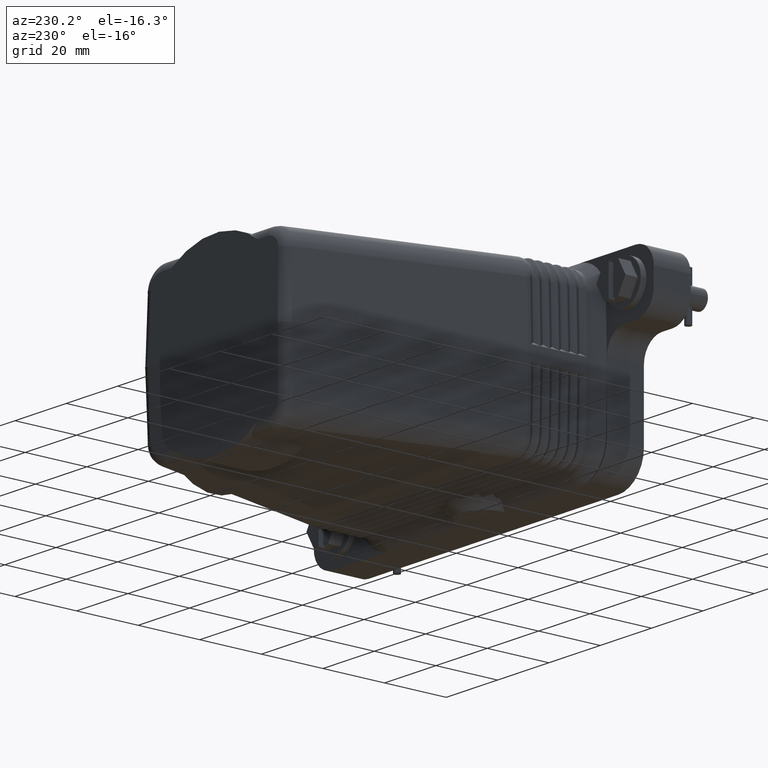
[diagram: clean part render]
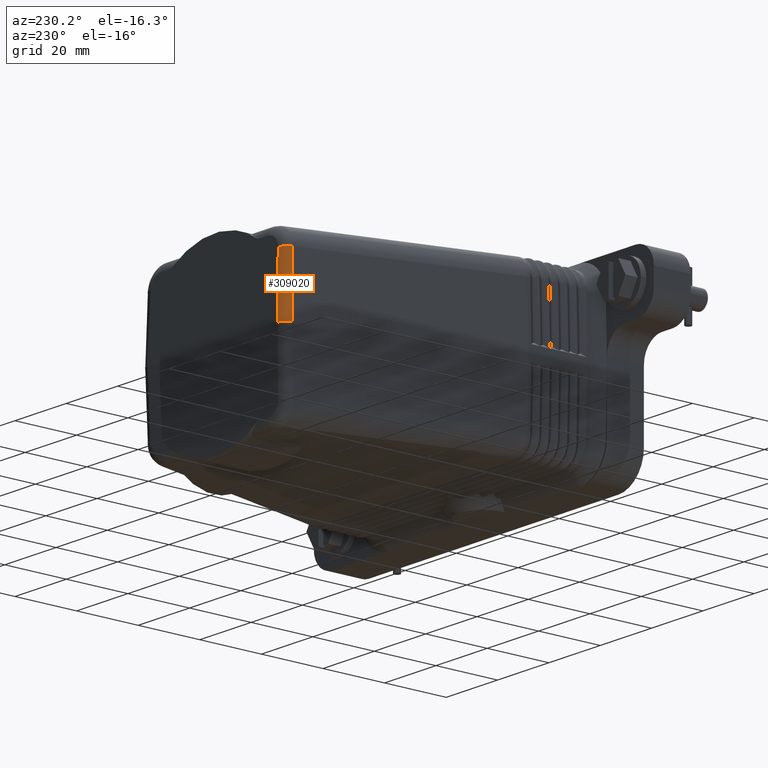
[diagram: same view with one face highlighted and labeled with its STEP entity id]
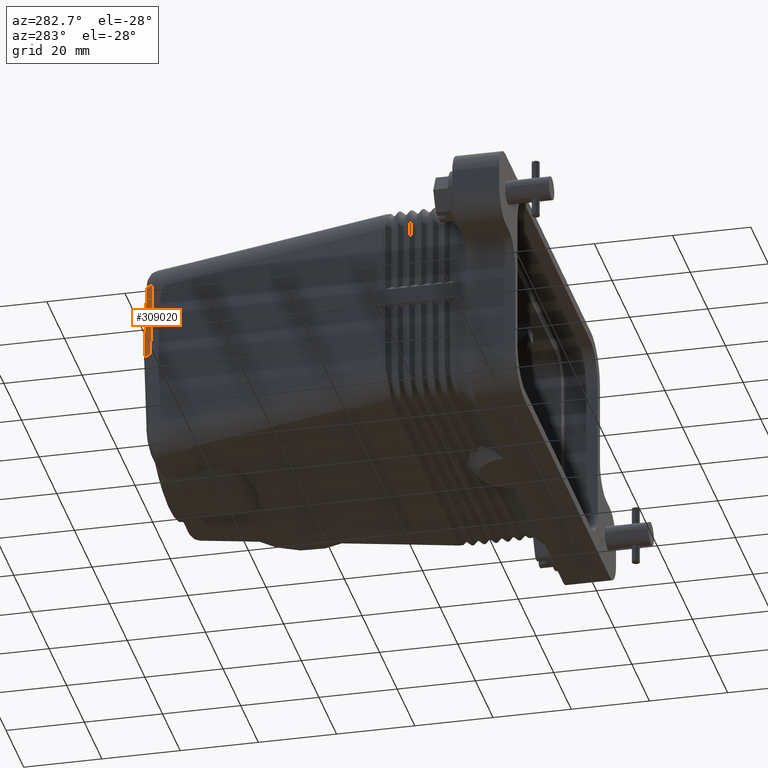
[diagram: same view with one face highlighted and labeled with its STEP entity id]
A machine part, auxiliary view. The second image highlights one B-rep face of the part: STEP entity #309020.
A second angle (auxiliary view) of the same face is appended — the face is thin or edge-on in the first view.
In plain terms, the highlighted face is a freeform B-spline surface patch.
Its self-contained STEP definition (entity closure, byte-faithful):
#13430=CARTESIAN_POINT('',(91.206011157678,94.0713620879131,
-26.0000000000001));
#13440=VERTEX_POINT('',#13430);
#13470=CARTESIAN_POINT('',(91.601509731377,93.5559384390967,
-6.31676136184489));
#13480=DIRECTION('',(-0.0200822294205101,0.0261716644575434,
-0.999455725903366));
#13490=VECTOR('',#13480,1.);
#13500=LINE('',#13470,#13490);
#13510=CARTESIAN_POINT('',(91.601509731377,93.5559384390967,
-6.31676136184489));
#13520=VERTEX_POINT('',#13510);
#13530=EDGE_CURVE('',#13520,#13440,#13500,.T.);
#194690=CARTESIAN_POINT('',(94.498294172408,95.7787191862643,
-6.31675866843525));
#194700=VERTEX_POINT('',#194690);
#194730=CARTESIAN_POINT('',(94.498294172408,95.7787191862643,
-6.31675866843525));
#194740=DIRECTION('',(-0.0200822245460291,0.0261716692496576,
-0.999455725875824));
#194750=VECTOR('',#194740,1.);
#194760=LINE('',#194730,#194750);
#194770=CARTESIAN_POINT('',(94.1027956405768,96.294143,-26.0000000000002
));
#194780=VERTEX_POINT('',#194770);
#194790=EDGE_CURVE('',#194700,#194780,#194760,.T.);
#250910=CARTESIAN_POINT('',(94.1027956405768,93.2951710250733,
-26.0000000000001));
#250920=DIRECTION('',(2.60731013591237E-14,2.00065943331677E-14,1.));
#250930=DIRECTION('',(1.,0.,-2.60731013591237E-14));
#250940=AXIS2_PLACEMENT_3D('',#250910,#250920,#250930);
#250950=CIRCLE('',#250940,2.99897197492669);
#250960=EDGE_CURVE('',#194780,#13440,#250950,.T.);
#308570=CARTESIAN_POINT('',(94.498294172408,95.7787191862643,
-6.31675866843525));
#308580=CARTESIAN_POINT('',(94.4958499351479,95.7819045782788,
-6.43840388172883));
#308590=CARTESIAN_POINT('',(94.4934057595329,95.7850899820879,
-6.56004954543669));
#308600=CARTESIAN_POINT('',(94.3640171203746,95.9537125395964,
-12.9994852194087));
#308610=CARTESIAN_POINT('',(94.2370727094547,96.1191497168476,
-19.3172761290824));
#308620=CARTESIAN_POINT('',(94.1076840792154,96.2877722627326,
-25.7567113591708));
#308630=CARTESIAN_POINT('',(94.1052398598961,96.2909576313663,
-25.8783556795855));
#308640=CARTESIAN_POINT('',(94.1027956405768,96.294143,-26.0000000000002
));
#308650=CARTESIAN_POINT('',(93.0871837024079,95.7779772623066,
-6.28842573557759));
#308660=CARTESIAN_POINT('',(93.0847394749059,95.7811626416039,
-6.41007046321517));
#308670=CARTESIAN_POINT('',(93.0822952644129,95.7843480235453,
-6.53171529183043));
#308680=CARTESIAN_POINT('',(92.9529066251059,95.9529705812477,
-12.9711509732094));
#308690=CARTESIAN_POINT('',(92.8259622141858,96.1184077584989,
-19.2889418828831));
#308700=CARTESIAN_POINT('',(92.6965689699672,96.2870260989121,
-25.7282165124822));
#308710=CARTESIAN_POINT('',(92.6937831963871,96.290682993239,
-25.8678676726419));
#308720=CARTESIAN_POINT('',(92.6912258799093,96.294143,-26.0000000000002
));
#308730=CARTESIAN_POINT('',(91.9674486920052,94.9187743930386,
-6.28842580437775));
#308740=CARTESIAN_POINT('',(91.9650044630301,94.9219597742563,
-6.41007060534332));
#308750=CARTESIAN_POINT('',(91.9625602241359,94.9251451083714,
-6.53171530664447));
#308760=CARTESIAN_POINT('',(91.8331715851264,95.0937676656858,
-12.9711509732094));
#308770=CARTESIAN_POINT('',(91.7062271742065,95.2592048429371,
-19.2889418828831));
#308780=CARTESIAN_POINT('',(91.5768438003269,95.4278307571278,
-25.7282165124822));
#308790=CARTESIAN_POINT('',(91.5740325229102,95.4314680816726,
-25.8678676726419));
#308800=CARTESIAN_POINT('',(91.5713522952296,95.4348337753505,
-26.0000000000001));
#308810=CARTESIAN_POINT('',(91.601509731377,93.5559384390967,
-6.31676136184489));
#308820=CARTESIAN_POINT('',(91.5990655121603,93.5591238075968,
-6.43840567715446));
#308830=CARTESIAN_POINT('',(91.5966212766341,93.562309070001,
-6.56004954543669));
#308840=CARTESIAN_POINT('',(91.4672326374758,93.7309316275094,
-12.9994852194087));
#308850=CARTESIAN_POINT('',(91.3402882265559,93.8963688047607,
-19.3172761290824));
#308860=CARTESIAN_POINT('',(91.2108995963166,94.0649913506456,
-25.7567113591708));
#308870=CARTESIAN_POINT('',(91.2084553769973,94.0681767192794,
-25.8783556795854));
#308880=CARTESIAN_POINT('',(91.206011157678,94.0713620879131,
-26.0000000000001));
#308890=(BOUNDED_SURFACE() B_SPLINE_SURFACE(3,3,((#308570,#308650,
#308730,#308810),(#308580,#308660,#308740,#308820),(#308590,#308670,
#308750,#308830),(#308600,#308680,#308760,#308840),(#308610,#308690,
#308770,#308850),(#308620,#308700,#308780,#308860),(#308630,#308710,
#308790,#308870),(#308640,#308720,#308800,#308880)),.UNSPECIFIED.,.F.,
.F.,.F.) B_SPLINE_SURFACE_WITH_KNOTS((4,2,2,4),(4,4),(0.,
0.365133025378699,19.3288272038063,19.693958896809),(0.,1.),
.UNSPECIFIED.) GEOMETRIC_REPRESENTATION_ITEM() RATIONAL_B_SPLINE_SURFACE
(((1.,0.862342244510653,0.862342244510653,1.),(1.,0.862342244510583,
0.862342244510583,1.),(1.,0.862342244510559,0.862342244510559,1.),(1.,
0.862342244510566,0.862342244510566,1.),(1.,0.862342244510565,
0.862342244510565,1.),(1.,0.86234984823323,0.86234984823323,1.),(1.,
0.862330197985938,0.862330197985938,1.),(1.,0.862235560194157,
0.862235560194157,1.))) REPRESENTATION_ITEM('') SURFACE());
#308900=CARTESIAN_POINT('',(94.4982941407009,92.7797473331406,
-6.39529085797577));
#308910=DIRECTION('',(0.0200817135389942,-0.0261720641106264,
0.999455725803563));
#308920=DIRECTION('',(0.,0.999657314640633,0.0261773429797464));
#308930=AXIS2_PLACEMENT_3D('',#308900,#308910,#308920);
#308940=CIRCLE('',#308930,2.99999991343697);
#308950=EDGE_CURVE('',#194700,#13520,#308940,.T.);
#308960=ORIENTED_EDGE('',*,*,#308950,.F.);
#308970=ORIENTED_EDGE('',*,*,#13530,.F.);
#308980=ORIENTED_EDGE('',*,*,#250960,.T.);
#308990=ORIENTED_EDGE('',*,*,#194790,.T.);
#309000=EDGE_LOOP('',(#308990,#308980,#308970,#308960));
#309010=FACE_OUTER_BOUND('',#309000,.T.);
#309020=ADVANCED_FACE('',(#309010),#308890,.T.);